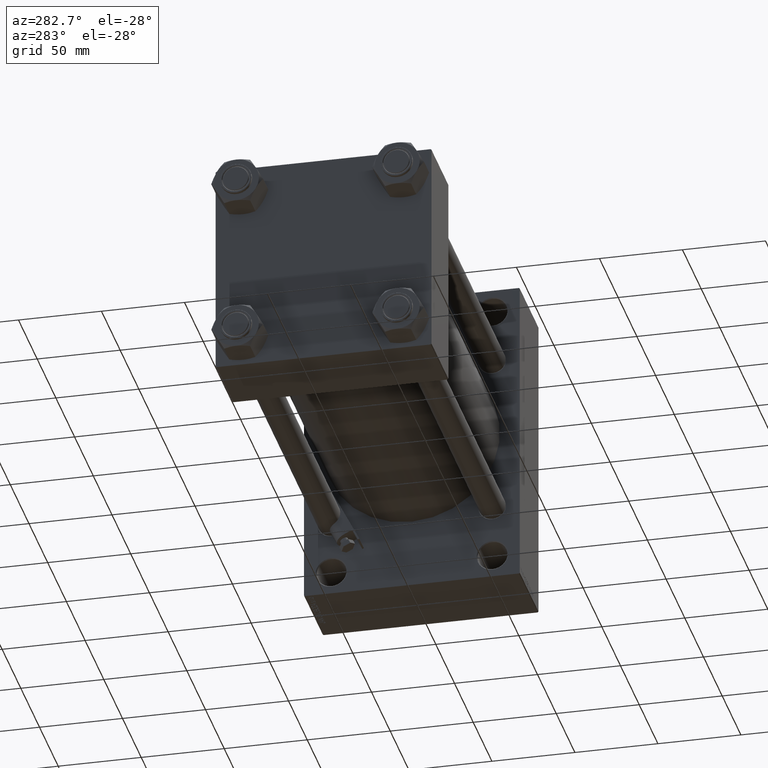
[diagram: clean part render]
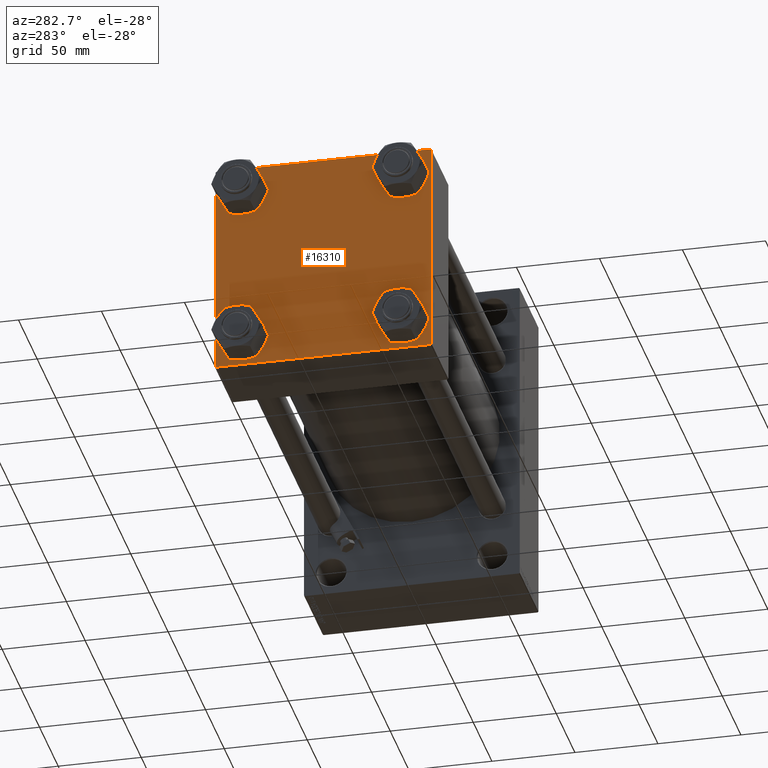
[diagram: same view with one face highlighted and labeled with its STEP entity id]
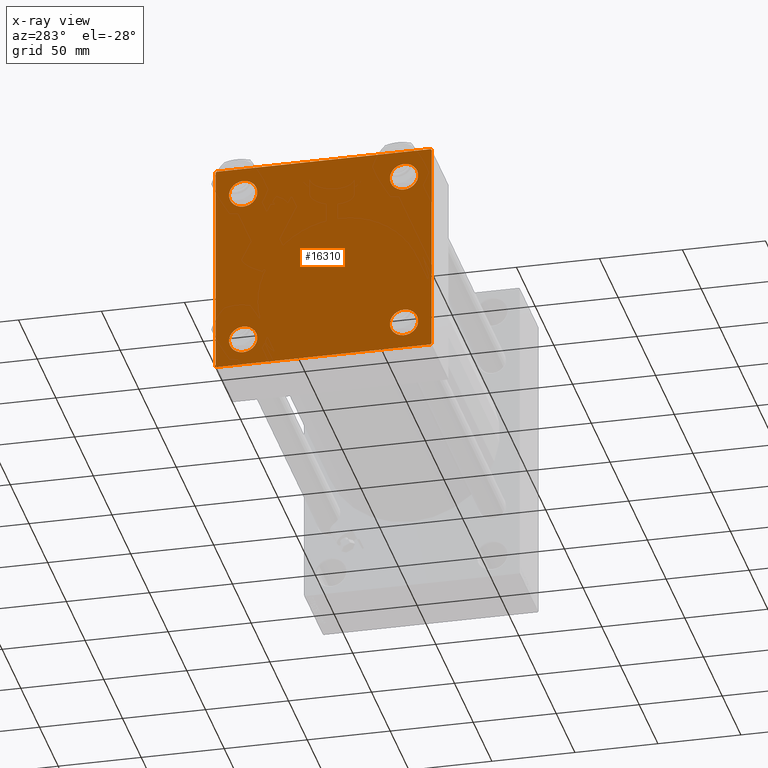
[diagram: x-ray of the same camera — body ghosted, the highlighted face saturated]
A machine part, auxiliary view. The second image highlights one B-rep face of the part: STEP entity #16310.
The next image is the same camera in x-ray: the body ghosted, the highlighted face saturated — about 0% of this face is hidden behind the body in this view.
In plain terms, the highlighted planar face has unit normal (-1, 0, 0).
Its self-contained STEP definition (entity closure, byte-faithful):
#78 = CARTESIAN_POINT ( 'NONE',  ( 0.000000000000000000, -48.44999999999999574, -56.95000000000003837 ) ) ;
#660 = CARTESIAN_POINT ( 'NONE',  ( 0.000000000000000000, -65.00000000000000000, 64.50000000000000000 ) ) ;
#1070 = VERTEX_POINT ( 'NONE', #15762 ) ;
#1113 = CARTESIAN_POINT ( 'NONE',  ( 0.000000000000000000, 64.49999999999997158, -64.99999999999998579 ) ) ;
#1182 = DIRECTION ( 'NONE',  ( 0.000000000000000000, 0.000000000000000000, 1.000000000000000000 ) ) ;
#1572 = CARTESIAN_POINT ( 'NONE',  ( 0.000000000000000000, 64.49999999999997158, 65.00000000000001421 ) ) ;
#1978 = AXIS2_PLACEMENT_3D ( 'NONE', #46696, #9907, #31887 ) ;
#2186 = ORIENTED_EDGE ( 'NONE', *, *, #7003, .T. ) ;
#2362 = EDGE_LOOP ( 'NONE', ( #2186, #37175 ) ) ;
#3286 = CARTESIAN_POINT ( 'NONE',  ( 0.000000000000000000, 48.45000000000000995, 48.45000000000001705 ) ) ;
#3352 = EDGE_CURVE ( 'NONE', #38887, #5554, #45206, .T. ) ;
#3971 = EDGE_CURVE ( 'NONE', #4253, #15283, #19155, .T. ) ;
#4041 = EDGE_CURVE ( 'NONE', #11463, #26278, #25479, .T. ) ;
#4119 = DIRECTION ( 'NONE',  ( 0.000000000000000000, 0.000000000000000000, 1.000000000000000000 ) ) ;
#4253 = VERTEX_POINT ( 'NONE', #20635 ) ;
#4437 = VECTOR ( 'NONE', #8339, 1000.000000000000114 ) ;
#5089 = AXIS2_PLACEMENT_3D ( 'NONE', #36011, #24174, #17241 ) ;
#5437 = AXIS2_PLACEMENT_3D ( 'NONE', #9301, #24364, #1182 ) ;
#5554 = VERTEX_POINT ( 'NONE', #78 ) ;
#5773 = DIRECTION ( 'NONE',  ( -0.000000000000000000, 0.7071067811865672237, 0.7071067811865279218 ) ) ;
#5834 = VECTOR ( 'NONE', #23124, 1000.000000000000000 ) ;
#6415 = FACE_BOUND ( 'NONE', #38881, .T. ) ;
#6458 = VERTEX_POINT ( 'NONE', #45012 ) ;
#6760 = LINE ( 'NONE', #29473, #19059 ) ;
#7003 = EDGE_CURVE ( 'NONE', #26278, #11463, #9819, .T. ) ;
#7882 = CIRCLE ( 'NONE', #8661, 8.500000000000007105 ) ;
#8249 = DIRECTION ( 'NONE',  ( 0.000000000000000000, 0.7071067811865474617, -0.7071067811865474617 ) ) ;
#8339 = DIRECTION ( 'NONE',  ( -0.000000000000000000, -0.7071067811865474617, -0.7071067811865474617 ) ) ;
#8377 = ORIENTED_EDGE ( 'NONE', *, *, #31333, .T. ) ;
#8661 = AXIS2_PLACEMENT_3D ( 'NONE', #3286, #18344, #48719 ) ;
#8985 = CIRCLE ( 'NONE', #12130, 8.500000000000007105 ) ;
#9301 = CARTESIAN_POINT ( 'NONE',  ( 0.000000000000000000, 48.45000000000000995, 48.45000000000001705 ) ) ;
#9481 = CARTESIAN_POINT ( 'NONE',  ( -0.000000000000000000, -64.74999999999819522, 64.75000000000179057 ) ) ;
#9720 = LINE ( 'NONE', #9481, #44159 ) ;
#9754 = ORIENTED_EDGE ( 'NONE', *, *, #22547, .T. ) ;
#9819 = CIRCLE ( 'NONE', #5089, 8.500000000000007105 ) ;
#9841 = CARTESIAN_POINT ( 'NONE',  ( 0.000000000000000000, 48.45000000000000995, -48.45000000000001705 ) ) ;
#9907 = DIRECTION ( 'NONE',  ( 1.000000000000000000, -0.000000000000000000, 0.000000000000000000 ) ) ;
#10424 = CARTESIAN_POINT ( 'NONE',  ( 0.000000000000000000, 65.00000000000000000, 65.00000000000001421 ) ) ;
#10776 = LINE ( 'NONE', #14485, #23110 ) ;
#10797 = CARTESIAN_POINT ( 'NONE',  ( 0.000000000000000000, -48.44999999999999574, -48.45000000000003126 ) ) ;
#10888 = EDGE_LOOP ( 'NONE', ( #42612, #22067 ) ) ;
#10981 = ORIENTED_EDGE ( 'NONE', *, *, #3971, .T. ) ;
#11463 = VERTEX_POINT ( 'NONE', #45918 ) ;
#11587 = CARTESIAN_POINT ( 'NONE',  ( 0.000000000000000000, 0.000000000000000000, 0.000000000000000000 ) ) ;
#12130 = AXIS2_PLACEMENT_3D ( 'NONE', #25902, #14546, #48129 ) ;
#13326 = EDGE_CURVE ( 'NONE', #15283, #4253, #8985, .T. ) ;
#14249 = ORIENTED_EDGE ( 'NONE', *, *, #13326, .T. ) ;
#14485 = CARTESIAN_POINT ( 'NONE',  ( 0.000000000000000000, 65.00000000000000000, -64.99999999999998579 ) ) ;
#14546 = DIRECTION ( 'NONE',  ( 1.000000000000000000, -0.000000000000000000, 0.000000000000000000 ) ) ;
#14922 = LINE ( 'NONE', #22581, #29883 ) ;
#15283 = VERTEX_POINT ( 'NONE', #36838 ) ;
#15522 = VERTEX_POINT ( 'NONE', #21465 ) ;
#15596 = ORIENTED_EDGE ( 'NONE', *, *, #28951, .T. ) ;
#15762 = CARTESIAN_POINT ( 'NONE',  ( 0.000000000000000000, 48.45000000000000995, 39.95000000000000284 ) ) ;
#16310 = ADVANCED_FACE ( 'NONE', ( #25196, #40250, #6415, #21474, #17783 ), #23181, .T. ) ;
#16669 = ORIENTED_EDGE ( 'NONE', *, *, #18071, .T. ) ;
#17204 = CARTESIAN_POINT ( 'NONE',  ( 0.000000000000000000, -64.49999999999994316, -65.00000000000000000 ) ) ;
#17241 = DIRECTION ( 'NONE',  ( 0.000000000000000000, 0.000000000000000000, 1.000000000000000000 ) ) ;
#17783 = FACE_OUTER_BOUND ( 'NONE', #25297, .T. ) ;
#18071 = EDGE_CURVE ( 'NONE', #41195, #6458, #44741, .T. ) ;
#18344 = DIRECTION ( 'NONE',  ( 1.000000000000000000, -0.000000000000000000, 0.000000000000000000 ) ) ;
#19059 = VECTOR ( 'NONE', #28999, 1000.000000000000000 ) ;
#19155 = CIRCLE ( 'NONE', #41251, 8.500000000000007105 ) ;
#20176 = CARTESIAN_POINT ( 'NONE',  ( 0.000000000000000000, 64.74999999999997158, -64.74999999999997158 ) ) ;
#20185 = EDGE_CURVE ( 'NONE', #5554, #38887, #39819, .T. ) ;
#20635 = CARTESIAN_POINT ( 'NONE',  ( 0.000000000000000000, 48.45000000000000995, -56.95000000000002416 ) ) ;
#20739 = AXIS2_PLACEMENT_3D ( 'NONE', #10797, #40685, #48571 ) ;
#21041 = ORIENTED_EDGE ( 'NONE', *, *, #43187, .T. ) ;
#21465 = CARTESIAN_POINT ( 'NONE',  ( 0.000000000000000000, -65.00000000000000000, -64.49999999999991473 ) ) ;
#21474 = FACE_BOUND ( 'NONE', #37918, .T. ) ;
#21983 = CIRCLE ( 'NONE', #5437, 8.500000000000007105 ) ;
#22067 = ORIENTED_EDGE ( 'NONE', *, *, #20185, .T. ) ;
#22547 = EDGE_CURVE ( 'NONE', #6458, #34171, #39184, .T. ) ;
#22581 = CARTESIAN_POINT ( 'NONE',  ( 0.000000000000000000, 64.74999999999998579, 64.74999999999998579 ) ) ;
#22618 = VERTEX_POINT ( 'NONE', #45870 ) ;
#23110 = VECTOR ( 'NONE', #29542, 1000.000000000000000 ) ;
#23124 = DIRECTION ( 'NONE',  ( 0.000000000000000000, -0.7071067811865279218, 0.7071067811865671127 ) ) ;
#23181 = PLANE ( 'NONE',  #27957 ) ;
#23398 = CARTESIAN_POINT ( 'NONE',  ( 0.000000000000000000, -48.44999999999999574, 48.45000000000003126 ) ) ;
#24174 = DIRECTION ( 'NONE',  ( 1.000000000000000000, -0.000000000000000000, 0.000000000000000000 ) ) ;
#24364 = DIRECTION ( 'NONE',  ( 1.000000000000000000, -0.000000000000000000, 0.000000000000000000 ) ) ;
#25196 = FACE_BOUND ( 'NONE', #2362, .T. ) ;
#25297 = EDGE_LOOP ( 'NONE', ( #16669, #9754, #21041, #40301, #28000, #8377, #27921, #15596 ) ) ;
#25479 = CIRCLE ( 'NONE', #45177, 8.500000000000007105 ) ;
#25749 = DIRECTION ( 'NONE',  ( 0.000000000000000000, 0.000000000000000000, -1.000000000000000000 ) ) ;
#25902 = CARTESIAN_POINT ( 'NONE',  ( 0.000000000000000000, 48.45000000000000995, -48.45000000000001705 ) ) ;
#26153 = DIRECTION ( 'NONE',  ( -1.000000000000000000, 0.000000000000000000, -0.000000000000000000 ) ) ;
#26278 = VERTEX_POINT ( 'NONE', #29330 ) ;
#26691 = EDGE_CURVE ( 'NONE', #28658, #15522, #46603, .T. ) ;
#26835 = LINE ( 'NONE', #34959, #5834 ) ;
#27921 = ORIENTED_EDGE ( 'NONE', *, *, #39984, .F. ) ;
#27957 = AXIS2_PLACEMENT_3D ( 'NONE', #11587, #26153, #41462 ) ;
#28000 = ORIENTED_EDGE ( 'NONE', *, *, #26691, .F. ) ;
#28088 = CARTESIAN_POINT ( 'NONE',  ( 0.000000000000000000, -65.00000000000000000, 65.00000000000000000 ) ) ;
#28658 = VERTEX_POINT ( 'NONE', #660 ) ;
#28951 = EDGE_CURVE ( 'NONE', #35614, #41195, #14922, .T. ) ;
#28999 = DIRECTION ( 'NONE',  ( 0.000000000000000000, -1.000000000000000000, -1.067522139062650425E-16 ) ) ;
#29330 = CARTESIAN_POINT ( 'NONE',  ( 0.000000000000000000, -48.44999999999999574, 56.95000000000003837 ) ) ;
#29473 = CARTESIAN_POINT ( 'NONE',  ( 0.000000000000000000, 65.00000000000000000, 65.00000000000001421 ) ) ;
#29542 = DIRECTION ( 'NONE',  ( 0.000000000000000000, -1.000000000000000000, -1.067522139062650425E-16 ) ) ;
#29883 = VECTOR ( 'NONE', #8249, 1000.000000000000114 ) ;
#29949 = ORIENTED_EDGE ( 'NONE', *, *, #31968, .T. ) ;
#31333 = EDGE_CURVE ( 'NONE', #28658, #22618, #9720, .T. ) ;
#31408 = EDGE_CURVE ( 'NONE', #40846, #1070, #7882, .T. ) ;
#31887 = DIRECTION ( 'NONE',  ( 0.000000000000000000, 0.000000000000000000, 1.000000000000000000 ) ) ;
#31967 = VECTOR ( 'NONE', #25749, 1000.000000000000000 ) ;
#31968 = EDGE_CURVE ( 'NONE', #1070, #40846, #21983, .T. ) ;
#32219 = ORIENTED_EDGE ( 'NONE', *, *, #31408, .T. ) ;
#32759 = CARTESIAN_POINT ( 'NONE',  ( 0.000000000000000000, -48.44999999999999574, -39.95000000000001705 ) ) ;
#34171 = VERTEX_POINT ( 'NONE', #1113 ) ;
#34533 = VECTOR ( 'NONE', #43383, 1000.000000000000000 ) ;
#34959 = CARTESIAN_POINT ( 'NONE',  ( 0.000000000000000000, -64.75000000000176215, -64.74999999999816680 ) ) ;
#35286 = DIRECTION ( 'NONE',  ( 1.000000000000000000, -0.000000000000000000, 0.000000000000000000 ) ) ;
#35614 = VERTEX_POINT ( 'NONE', #1572 ) ;
#36011 = CARTESIAN_POINT ( 'NONE',  ( 0.000000000000000000, -48.44999999999999574, 48.45000000000003126 ) ) ;
#36838 = CARTESIAN_POINT ( 'NONE',  ( 0.000000000000000000, 48.45000000000000995, -39.95000000000000284 ) ) ;
#37175 = ORIENTED_EDGE ( 'NONE', *, *, #4041, .T. ) ;
#37918 = EDGE_LOOP ( 'NONE', ( #32219, #29949 ) ) ;
#38445 = DIRECTION ( 'NONE',  ( 1.000000000000000000, -0.000000000000000000, 0.000000000000000000 ) ) ;
#38881 = EDGE_LOOP ( 'NONE', ( #14249, #10981 ) ) ;
#38887 = VERTEX_POINT ( 'NONE', #32759 ) ;
#39184 = LINE ( 'NONE', #20176, #4437 ) ;
#39819 = CIRCLE ( 'NONE', #1978, 8.500000000000007105 ) ;
#39984 = EDGE_CURVE ( 'NONE', #35614, #22618, #6760, .T. ) ;
#40250 = FACE_BOUND ( 'NONE', #10888, .T. ) ;
#40301 = ORIENTED_EDGE ( 'NONE', *, *, #44939, .T. ) ;
#40685 = DIRECTION ( 'NONE',  ( 1.000000000000000000, -0.000000000000000000, 0.000000000000000000 ) ) ;
#40774 = CARTESIAN_POINT ( 'NONE',  ( 0.000000000000000000, 65.00000000000000000, 64.49999999999998579 ) ) ;
#40846 = VERTEX_POINT ( 'NONE', #48473 ) ;
#41195 = VERTEX_POINT ( 'NONE', #40774 ) ;
#41251 = AXIS2_PLACEMENT_3D ( 'NONE', #9841, #35286, #47132 ) ;
#41462 = DIRECTION ( 'NONE',  ( -0.000000000000000000, 0.000000000000000000, 1.000000000000000000 ) ) ;
#42612 = ORIENTED_EDGE ( 'NONE', *, *, #3352, .T. ) ;
#43187 = EDGE_CURVE ( 'NONE', #34171, #46397, #10776, .T. ) ;
#43383 = DIRECTION ( 'NONE',  ( 0.000000000000000000, 0.000000000000000000, -1.000000000000000000 ) ) ;
#44159 = VECTOR ( 'NONE', #5773, 1000.000000000000000 ) ;
#44741 = LINE ( 'NONE', #10424, #31967 ) ;
#44939 = EDGE_CURVE ( 'NONE', #46397, #15522, #26835, .T. ) ;
#45012 = CARTESIAN_POINT ( 'NONE',  ( 0.000000000000000000, 65.00000000000000000, -64.49999999999995737 ) ) ;
#45177 = AXIS2_PLACEMENT_3D ( 'NONE', #23398, #38445, #4119 ) ;
#45206 = CIRCLE ( 'NONE', #20739, 8.500000000000007105 ) ;
#45870 = CARTESIAN_POINT ( 'NONE',  ( 0.000000000000000000, -64.49999999999997158, 65.00000000000000000 ) ) ;
#45918 = CARTESIAN_POINT ( 'NONE',  ( 0.000000000000000000, -48.44999999999999574, 39.95000000000001705 ) ) ;
#46397 = VERTEX_POINT ( 'NONE', #17204 ) ;
#46603 = LINE ( 'NONE', #28088, #34533 ) ;
#46696 = CARTESIAN_POINT ( 'NONE',  ( 0.000000000000000000, -48.44999999999999574, -48.45000000000003126 ) ) ;
#47132 = DIRECTION ( 'NONE',  ( 0.000000000000000000, 0.000000000000000000, 1.000000000000000000 ) ) ;
#48129 = DIRECTION ( 'NONE',  ( 0.000000000000000000, 0.000000000000000000, 1.000000000000000000 ) ) ;
#48473 = CARTESIAN_POINT ( 'NONE',  ( 0.000000000000000000, 48.45000000000000995, 56.95000000000002416 ) ) ;
#48571 = DIRECTION ( 'NONE',  ( 0.000000000000000000, 0.000000000000000000, 1.000000000000000000 ) ) ;
#48719 = DIRECTION ( 'NONE',  ( 0.000000000000000000, 0.000000000000000000, 1.000000000000000000 ) ) ;